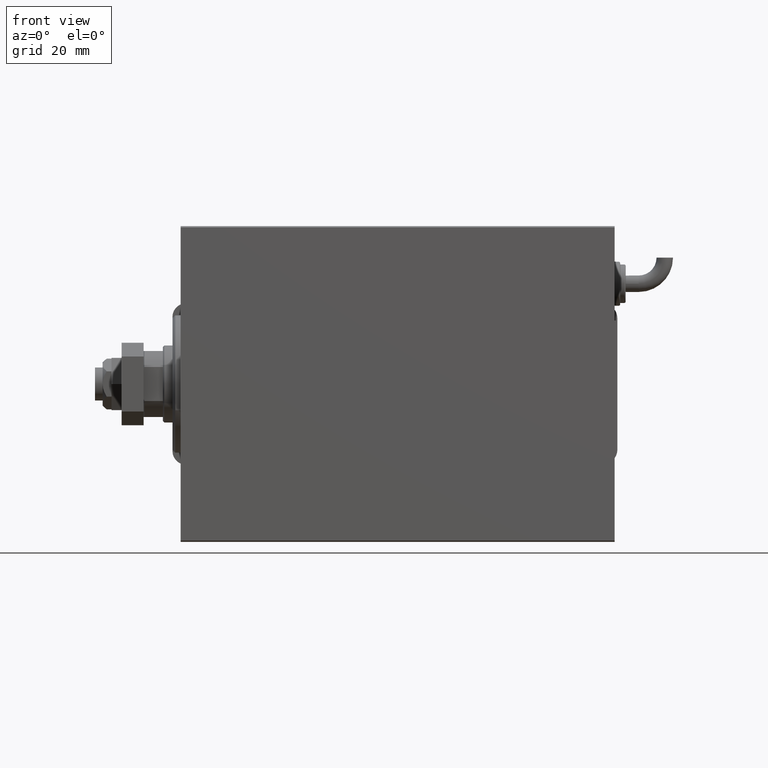
[diagram: clean part render]
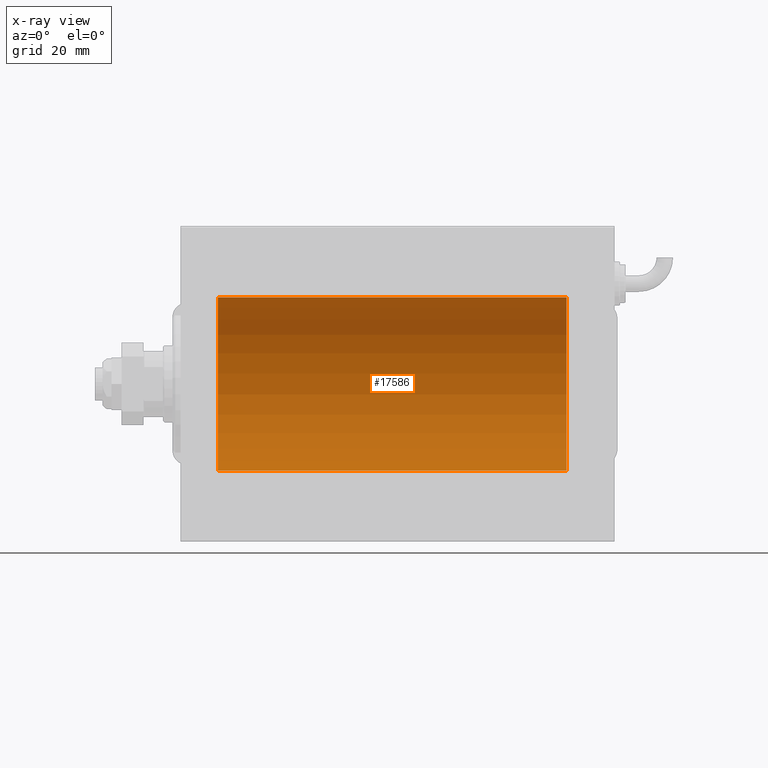
[diagram: x-ray — body ghosted, one internal face saturated and labeled with its STEP entity id]
A machine part, front view, then the same camera in x-ray: the body is ghosted and one INTERNAL B-rep face — a face not visible from any outside direction — is saturated and labeled: STEP entity #17586.
In plain terms, the highlighted cylindrical surface (partial cylindrical patch) has radius 31.5 mm, axis along (-1, -0, -0).
Its self-contained STEP definition (entity closure, byte-faithful):
#2331 = DIRECTION ( 'NONE',  ( -1.000000000000000000, -0.000000000000000000, -0.000000000000000000 ) ) ;
#6736 = EDGE_CURVE ( 'NONE', #11335, #26411, #7593, .T. ) ;
#7593 = CIRCLE ( 'NONE', #17202, 31.50000000000000000 ) ;
#8589 = FACE_OUTER_BOUND ( 'NONE', #18599, .T. ) ;
#8792 = CARTESIAN_POINT ( 'NONE',  ( 140.5000000000000000, 3.857637417314162689E-15, -31.50000000000000000 ) ) ;
#9771 = DIRECTION ( 'NONE',  ( 0.000000000000000000, 0.000000000000000000, 1.000000000000000000 ) ) ;
#10371 = DIRECTION ( 'NONE',  ( 0.000000000000000000, 0.000000000000000000, 1.000000000000000000 ) ) ;
#10756 = CARTESIAN_POINT ( 'NONE',  ( 13.50000000000001243, 3.857637417314162689E-15, -31.50000000000000000 ) ) ;
#10761 = CARTESIAN_POINT ( 'NONE',  ( 140.5000000000000000, 0.000000000000000000, 31.50000000000000000 ) ) ;
#11335 = VERTEX_POINT ( 'NONE', #52998 ) ;
#12295 = CARTESIAN_POINT ( 'NONE',  ( 140.5000000000000000, 0.000000000000000000, 0.000000000000000000 ) ) ;
#13349 = VERTEX_POINT ( 'NONE', #42368 ) ;
#15894 = ORIENTED_EDGE ( 'NONE', *, *, #42055, .T. ) ;
#17202 = AXIS2_PLACEMENT_3D ( 'NONE', #23656, #51353, #10371 ) ;
#17586 = ADVANCED_FACE ( 'NONE', ( #8589 ), #23044, .F. ) ;
#18599 = EDGE_LOOP ( 'NONE', ( #22120, #52826, #15894, #47528 ) ) ;
#21560 = VECTOR ( 'NONE', #27190, 1000.000000000000000 ) ;
#22120 = ORIENTED_EDGE ( 'NONE', *, *, #43050, .F. ) ;
#23044 = CYLINDRICAL_SURFACE ( 'NONE', #29396, 31.50000000000000000 ) ;
#23656 = CARTESIAN_POINT ( 'NONE',  ( 13.50000000000001243, 0.000000000000000000, 0.000000000000000000 ) ) ;
#24398 = VECTOR ( 'NONE', #2331, 1000.000000000000000 ) ;
#26411 = VERTEX_POINT ( 'NONE', #10756 ) ;
#26489 = DIRECTION ( 'NONE',  ( -1.000000000000000000, 0.000000000000000000, 0.000000000000000000 ) ) ;
#27190 = DIRECTION ( 'NONE',  ( -1.000000000000000000, -0.000000000000000000, -0.000000000000000000 ) ) ;
#29396 = AXIS2_PLACEMENT_3D ( 'NONE', #31800, #41428, #9771 ) ;
#30347 = LINE ( 'NONE', #10761, #24398 ) ;
#31800 = CARTESIAN_POINT ( 'NONE',  ( 140.5000000000000000, 0.000000000000000000, 0.000000000000000000 ) ) ;
#39895 = CARTESIAN_POINT ( 'NONE',  ( 140.5000000000000000, 0.000000000000000000, 31.50000000000000000 ) ) ;
#40025 = DIRECTION ( 'NONE',  ( 0.000000000000000000, 0.000000000000000000, 1.000000000000000000 ) ) ;
#40539 = AXIS2_PLACEMENT_3D ( 'NONE', #12295, #26489, #40025 ) ;
#41428 = DIRECTION ( 'NONE',  ( -1.000000000000000000, -0.000000000000000000, -0.000000000000000000 ) ) ;
#42055 = EDGE_CURVE ( 'NONE', #51605, #11335, #30347, .T. ) ;
#42368 = CARTESIAN_POINT ( 'NONE',  ( 140.5000000000000000, 3.857637417314162689E-15, -31.50000000000000000 ) ) ;
#43050 = EDGE_CURVE ( 'NONE', #13349, #26411, #50060, .T. ) ;
#47528 = ORIENTED_EDGE ( 'NONE', *, *, #6736, .T. ) ;
#50060 = LINE ( 'NONE', #8792, #21560 ) ;
#50091 = EDGE_CURVE ( 'NONE', #51605, #13349, #51093, .T. ) ;
#51093 = CIRCLE ( 'NONE', #40539, 31.50000000000000000 ) ;
#51353 = DIRECTION ( 'NONE',  ( -1.000000000000000000, 0.000000000000000000, 0.000000000000000000 ) ) ;
#51605 = VERTEX_POINT ( 'NONE', #39895 ) ;
#52826 = ORIENTED_EDGE ( 'NONE', *, *, #50091, .F. ) ;
#52998 = CARTESIAN_POINT ( 'NONE',  ( 13.50000000000001243, 0.000000000000000000, 31.50000000000000000 ) ) ;